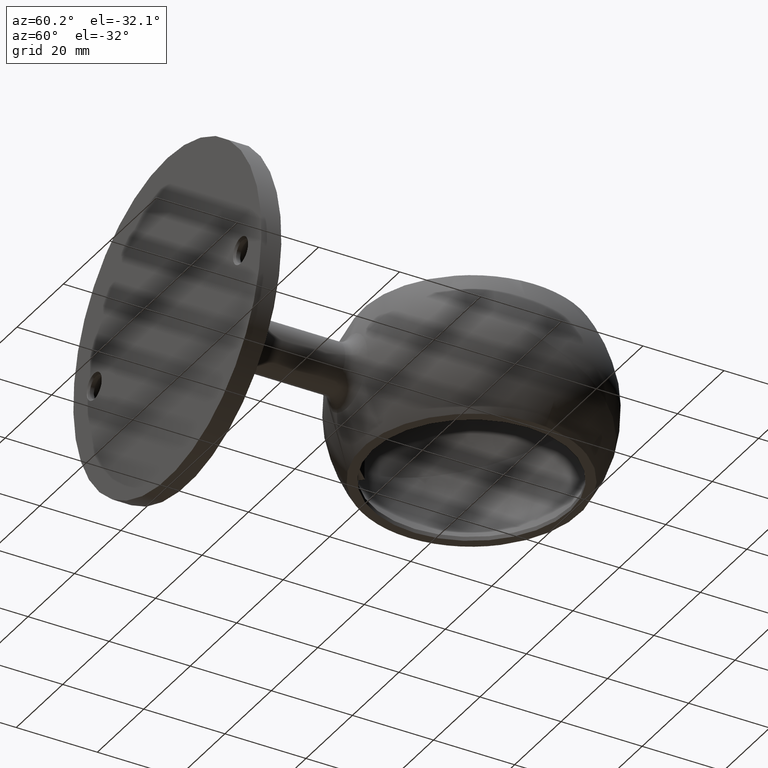
[diagram: clean part render]
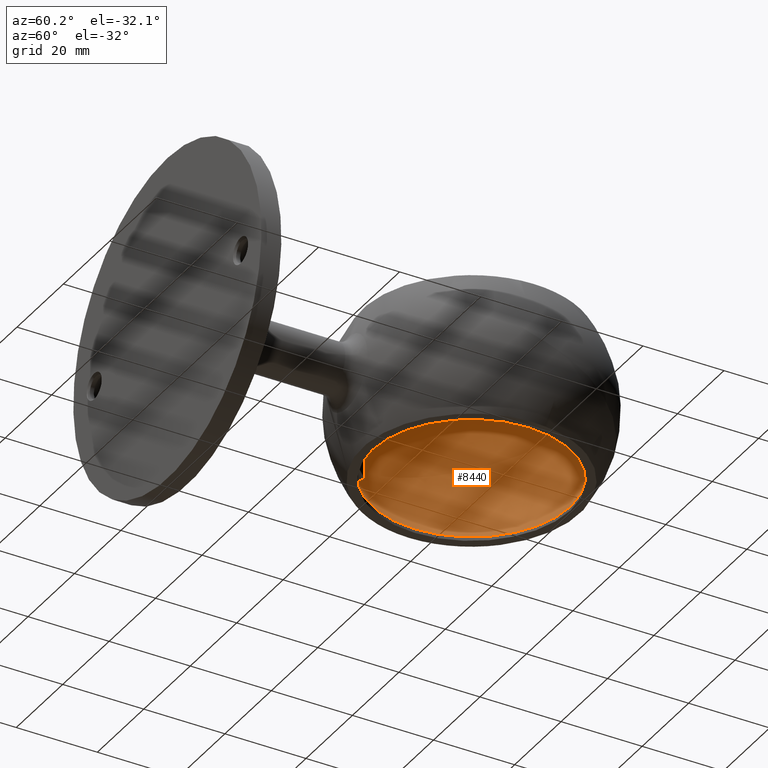
[diagram: same view with one face highlighted and labeled with its STEP entity id]
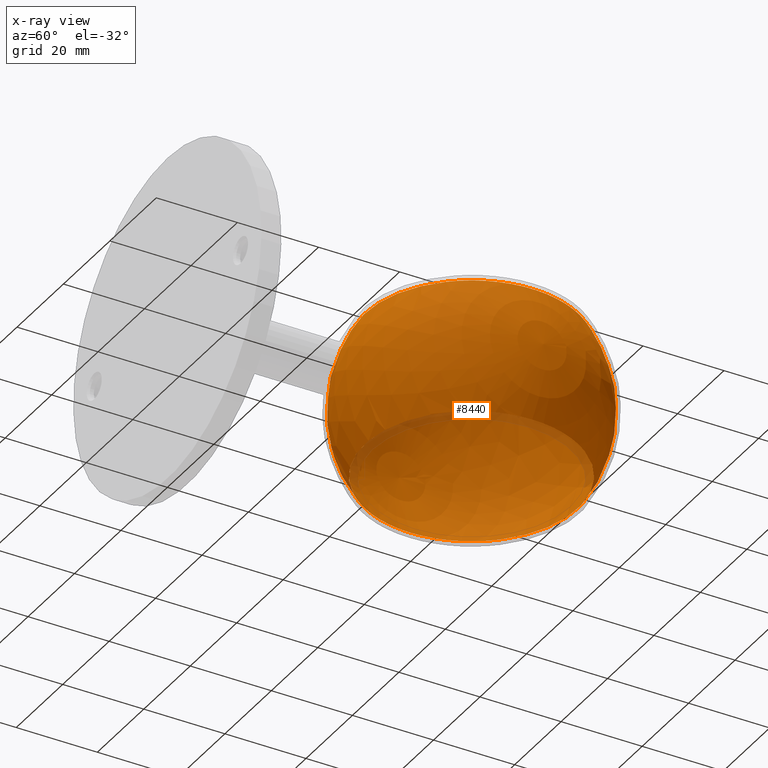
[diagram: x-ray of the same camera — body ghosted, the highlighted face saturated]
A machine part, auxiliary view. The second image highlights one B-rep face of the part: STEP entity #8440.
The next image is the same camera in x-ray: the body ghosted, the highlighted face saturated — about 5% of this face is hidden behind the body in this view.
In plain terms, the highlighted spherical surface has radius 31 mm.
Its self-contained STEP definition (entity closure, byte-faithful):
#616 = ORIENTED_EDGE ( 'NONE', *, *, #3539, .F. ) ;
#839 = DIRECTION ( 'NONE',  ( -0.000000000000000000, -0.000000000000000000, 1.000000000000000000 ) ) ;
#858 = DIRECTION ( 'NONE',  ( -0.000000000000000000, -0.000000000000000000, 1.000000000000000000 ) ) ;
#867 = DIRECTION ( 'NONE',  ( -0.000000000000000000, 0.000000000000000000, -1.000000000000000000 ) ) ;
#886 = AXIS2_PLACEMENT_3D ( 'NONE', #5646, #4812, #4097 ) ;
#1155 = DIRECTION ( 'NONE',  ( 0.000000000000000000, 1.000000000000000000, 0.000000000000000000 ) ) ;
#1182 = FACE_OUTER_BOUND ( 'NONE', #6008, .T. ) ;
#1306 = CARTESIAN_POINT ( 'NONE',  ( 26.24404694402142368, 75.00000000000000000, -16.50000000000000000 ) ) ;
#1320 = EDGE_CURVE ( 'NONE', #1920, #7076, #1336, .T. ) ;
#1336 = CIRCLE ( 'NONE', #886, 30.85449724108439895 ) ;
#1351 = EDGE_CURVE ( 'NONE', #7076, #8717, #4609, .T. ) ;
#1496 = DIRECTION ( 'NONE',  ( -0.7071067811865510144, 0.7071067811865441310, -8.761676666762182658E-17 ) ) ;
#1667 = AXIS2_PLACEMENT_3D ( 'NONE', #3978, #839, #4756 ) ;
#1920 = VERTEX_POINT ( 'NONE', #9979 ) ;
#1979 = DIRECTION ( 'NONE',  ( -1.000000000000000000, 0.000000000000000000, 0.000000000000000000 ) ) ;
#2815 = AXIS2_PLACEMENT_3D ( 'NONE', #9326, #1496, #3061 ) ;
#3061 = DIRECTION ( 'NONE',  ( 0.7071067811865442421, 0.7071067811865509034, 1.776356839400250859E-15 ) ) ;
#3224 = DIRECTION ( 'NONE',  ( 1.000000000000000000, 0.000000000000000000, 0.000000000000000000 ) ) ;
#3399 = CIRCLE ( 'NONE', #7713, 26.24404694402142368 ) ;
#3539 = EDGE_CURVE ( 'NONE', #8717, #5867, #4965, .T. ) ;
#3849 = VERTEX_POINT ( 'NONE', #1306 ) ;
#3978 = CARTESIAN_POINT ( 'NONE',  ( 0.000000000000000000, 75.00000000000000000, -16.50000000000000000 ) ) ;
#4097 = DIRECTION ( 'NONE',  ( -0.7071067811865442421, -0.7071067811865509034, 0.000000000000000000 ) ) ;
#4170 = ORIENTED_EDGE ( 'NONE', *, *, #8775, .F. ) ;
#4212 = CARTESIAN_POINT ( 'NONE',  ( 0.000000000000000000, 75.00000000000000000, 0.000000000000000000 ) ) ;
#4343 = CIRCLE ( 'NONE', #1667, 26.24404694402142368 ) ;
#4609 = CIRCLE ( 'NONE', #6646, 28.78801834096956824 ) ;
#4717 = CARTESIAN_POINT ( 'NONE',  ( -22.36669018461446257, 56.87595050256507534, -11.49999999999999289 ) ) ;
#4756 = DIRECTION ( 'NONE',  ( 1.000000000000000000, 0.000000000000000000, 0.000000000000000000 ) ) ;
#4781 = ORIENTED_EDGE ( 'NONE', *, *, #1320, .F. ) ;
#4812 = DIRECTION ( 'NONE',  ( 0.7071067811865510144, -0.7071067811865441310, 2.190419166690528285E-16 ) ) ;
#4965 = CIRCLE ( 'NONE', #2815, 30.85449724107886738 ) ;
#5086 = CARTESIAN_POINT ( 'NONE',  ( -18.12404949747911331, 52.63330981542134168, -11.49999999999999289 ) ) ;
#5536 = CARTESIAN_POINT ( 'NONE',  ( 0.000000000000000000, 75.00000000000000000, 16.50000000000000000 ) ) ;
#5646 = CARTESIAN_POINT ( 'NONE',  ( 2.121320343549682352, 72.87867965645034474, 6.571257500040698978E-16 ) ) ;
#5867 = VERTEX_POINT ( 'NONE', #6373 ) ;
#6008 = EDGE_LOOP ( 'NONE', ( #6997, #4781, #9512, #616 ) ) ;
#6373 = CARTESIAN_POINT ( 'NONE',  ( -20.55701940817293405, 58.68562127900663228, 16.49999999999999645 ) ) ;
#6435 = DIRECTION ( 'NONE',  ( 1.000000000000000000, 5.302750056564596371E-15, 0.000000000000000000 ) ) ;
#6466 = EDGE_LOOP ( 'NONE', ( #4170 ) ) ;
#6473 = CARTESIAN_POINT ( 'NONE',  ( 0.000000000000000000, 75.00000000000000000, -11.49999999999999645 ) ) ;
#6646 = AXIS2_PLACEMENT_3D ( 'NONE', #6473, #867, #6435 ) ;
#6852 = EDGE_CURVE ( 'NONE', #1920, #5867, #3399, .T. ) ;
#6997 = ORIENTED_EDGE ( 'NONE', *, *, #1351, .F. ) ;
#7076 = VERTEX_POINT ( 'NONE', #5086 ) ;
#7084 = AXIS2_PLACEMENT_3D ( 'NONE', #4212, #1979, #1155 ) ;
#7669 = FACE_OUTER_BOUND ( 'NONE', #6466, .T. ) ;
#7713 = AXIS2_PLACEMENT_3D ( 'NONE', #5536, #858, #3224 ) ;
#8440 = ADVANCED_FACE ( 'NONE', ( #7669, #1182 ), #9837, .F. ) ;
#8717 = VERTEX_POINT ( 'NONE', #4717 ) ;
#8775 = EDGE_CURVE ( 'NONE', #3849, #3849, #4343, .T. ) ;
#9326 = CARTESIAN_POINT ( 'NONE',  ( -2.121320343589879531, 77.12132034358985777, -2.628503000066107694E-16 ) ) ;
#9512 = ORIENTED_EDGE ( 'NONE', *, *, #6852, .T. ) ;
#9837 = SPHERICAL_SURFACE ( 'NONE', #7084, 31.00000000000000355 ) ;
#9979 = CARTESIAN_POINT ( 'NONE',  ( -16.31437872103798981, 54.44298059186248651, 16.50000000000000355 ) ) ;